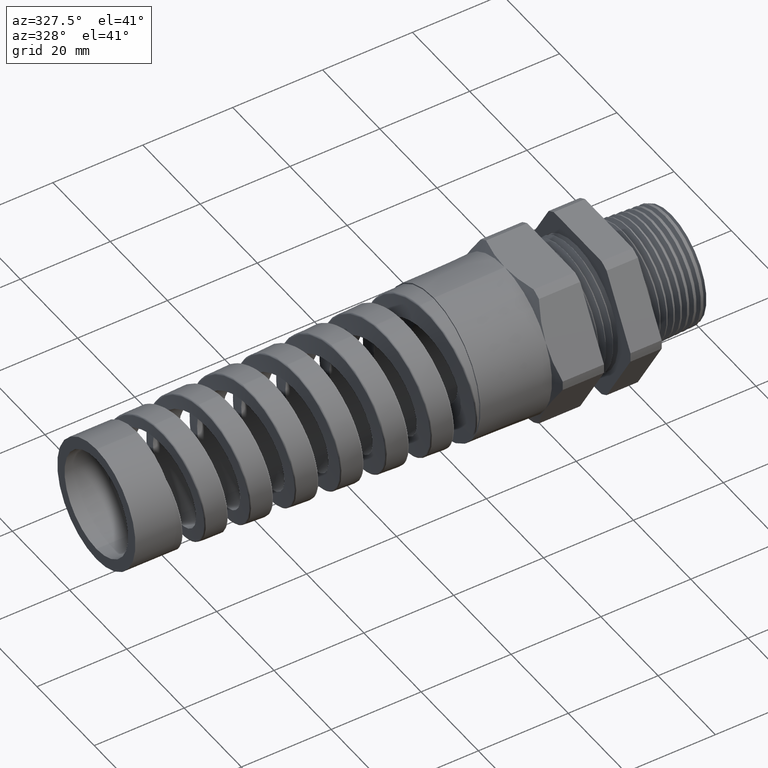
[diagram: clean part render]
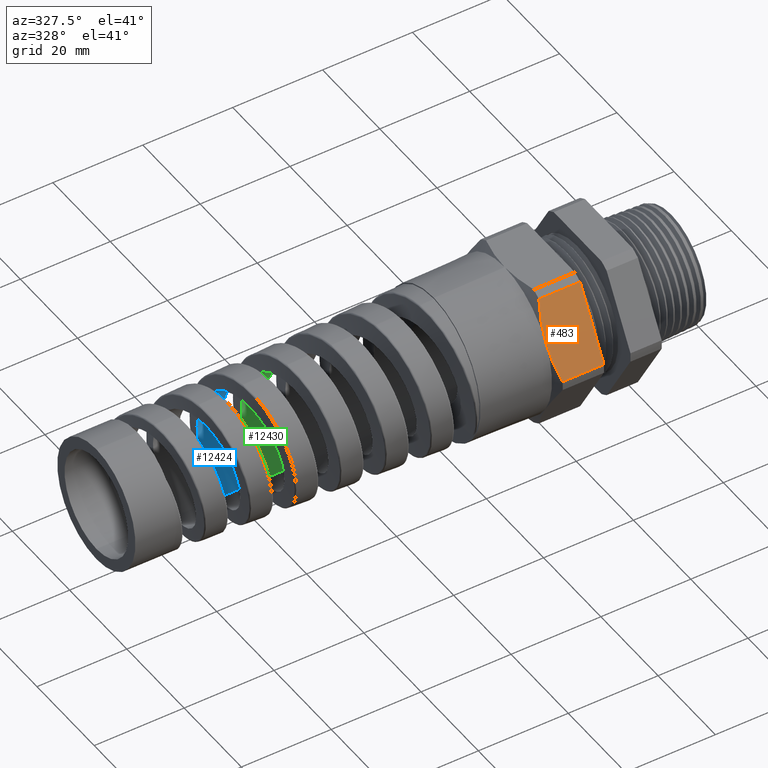
[diagram: same view with three faces highlighted in distinct colors, each labeled with its STEP entity id]
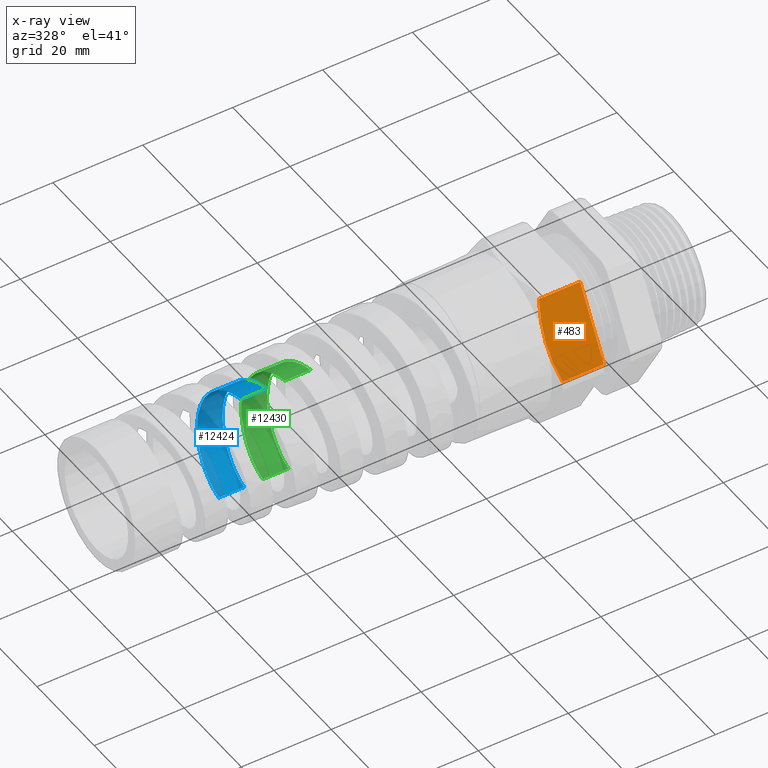
[diagram: x-ray of the same camera — body ghosted, the three highlighted faces saturated]
A machine part, auxiliary view with three faces highlighted in distinct colors.
The next image is the same camera in x-ray (body ghosted, the three faces saturated) — at least one of them is partly hidden behind the body in this view.
Their STEP definitions:

[orange] entity #483 — the highlighted planar face has unit normal (0, -0.866, 0.5).
#210 = ORIENTED_EDGE ( 'NONE', *, *, #212, .T. ) ;
#211 = ORIENTED_EDGE ( 'NONE', *, *, #217, .T. ) ;
#212 = EDGE_CURVE ( 'NONE', #13719, #4190, #12669, .T. ) ;
#213 = ORIENTED_EDGE ( 'NONE', *, *, #13856, .T. ) ;
#217 = EDGE_CURVE ( 'NONE', #8475, #700, #12742, .T. ) ;
#369 = EDGE_CURVE ( 'NONE', #4174, #8475, #12768, .T. ) ;
#370 = ORIENTED_EDGE ( 'NONE', *, *, #4171, .F. ) ;
#371 = EDGE_LOOP ( 'NONE', ( #370, #372, #211, #213, #210 ) ) ;
#372 = ORIENTED_EDGE ( 'NONE', *, *, #369, .T. ) ;
#483 = ADVANCED_FACE ( 'NONE', ( #12752 ), #12750, .T. ) ;
#700 = VERTEX_POINT ( 'NONE', #13281 ) ;
#1047 = CARTESIAN_POINT ( 'NONE',  ( -0.9125000000000002000, -0.5629165124598850500, 0.3249999999999999600 ) ) ;
#4171 = EDGE_CURVE ( 'NONE', #4174, #4190, #13559, .T. ) ;
#4174 = VERTEX_POINT ( 'NONE', #13555 ) ;
#4190 = VERTEX_POINT ( 'NONE', #13554 ) ;
#8475 = VERTEX_POINT ( 'NONE', #1047 ) ;
#10467 = CARTESIAN_POINT ( 'NONE',  ( -0.5058333333333336900, -0.7268402752278255700, 0.04107571431805911300 ) ) ;
#10485 = LINE ( 'NONE', #10545, #10544 ) ;
#10543 = DIRECTION ( 'NONE',  ( 1.000000000000000000, 0.0000000000000000000, 0.0000000000000000000 ) ) ;
#10544 = VECTOR ( 'NONE', #10543, 39.37007874015748100 ) ;
#10545 = CARTESIAN_POINT ( 'NONE',  ( -2.992185896283379200, -0.7268402752278255700, 0.04107571431805911300 ) ) ;
#12669 = LINE ( 'NONE', #12745, #12744 ) ;
#12732 = CARTESIAN_POINT ( 'NONE',  ( -0.8674666790032094000, -0.7268402752278256800, 0.04107571431805912000 ) ) ;
#12733 = CARTESIAN_POINT ( 'NONE',  ( -0.8814205714001800400, -0.7000062718228485800, 0.08755357158595522500 ) ) ;
#12734 = CARTESIAN_POINT ( 'NONE',  ( -0.8927551590989972800, -0.6729577337251735300, 0.1344030138415908400 ) ) ;
#12735 = CARTESIAN_POINT ( 'NONE',  ( -0.9044328033704855900, -0.6319488438240192800, 0.2054324947123887800 ) ) ;
#12736 = CARTESIAN_POINT ( 'NONE',  ( -0.9074375322794263600, -0.6182064968433951300, 0.2292349378980705900 ) ) ;
#12737 = CARTESIAN_POINT ( 'NONE',  ( -0.9114778356147184000, -0.5905605188772367100, 0.2771191763603863000 ) ) ;
#12738 = CARTESIAN_POINT ( 'NONE',  ( -0.9125000000000004200, -0.5766899915409090500, 0.3011436344346789000 ) ) ;
#12739 = CARTESIAN_POINT ( 'NONE',  ( -0.9125000000000002000, -0.5629165124598850500, 0.3249999999999999600 ) ) ;
#12742 = B_SPLINE_CURVE_WITH_KNOTS ( 'NONE', 3,
 ( #12739, #12738, #12737, #12736, #12735, #12734, #12733, #12732 ),
 .UNSPECIFIED., .F., .F.,
 ( 4, 2, 2, 4 ),
 ( 0.008402769293125167400, 0.01048919587064711100, 0.01257562244816905700, 0.01674847560321295400 ),
 .UNSPECIFIED. ) ;
#12743 = DIRECTION ( 'NONE',  ( 0.0000000000000000000, 0.5000000000000000000, 0.8660254037844386000 ) ) ;
#12744 = VECTOR ( 'NONE', #12743, 39.37007874015748100 ) ;
#12745 = CARTESIAN_POINT ( 'NONE',  ( -0.5058333333333334700, -0.4237915124598847800, 0.5659715686030198900 ) ) ;
#12746 = DIRECTION ( 'NONE',  ( 0.0000000000000000000, -0.5000000000000000000, -0.8660254037844386000 ) ) ;
#12747 = DIRECTION ( 'NONE',  ( 0.0000000000000000000, -0.8660254037844387100, 0.5000000000000001100 ) ) ;
#12748 = CARTESIAN_POINT ( 'NONE',  ( -2.992185896283379200, -0.3989927496919439800, 0.6089242856819407900 ) ) ;
#12749 = AXIS2_PLACEMENT_3D ( 'NONE', #12748, #12747, #12746 ) ;
#12750 = PLANE ( 'NONE',  #12749 ) ;
#12752 = FACE_OUTER_BOUND ( 'NONE', #371, .T. ) ;
#12760 = CARTESIAN_POINT ( 'NONE',  ( -0.9125000000000002000, -0.5629165124598850500, 0.3249999999999999600 ) ) ;
#12761 = CARTESIAN_POINT ( 'NONE',  ( -0.9125000000000004200, -0.5351819839639024900, 0.3730376124790081300 ) ) ;
#12762 = CARTESIAN_POINT ( 'NONE',  ( -0.9083465192945224800, -0.5076765033783838800, 0.4206785023397256500 ) ) ;
#12763 = CARTESIAN_POINT ( 'NONE',  ( -0.8928224553762588200, -0.4530635366525169200, 0.5152709354609957800 ) ) ;
#12764 = CARTESIAN_POINT ( 'NONE',  ( -0.8814868053153364100, -0.4259541240880419500, 0.5622258153860125700 ) ) ;
#12765 = CARTESIAN_POINT ( 'NONE',  ( -0.8674666790032094000, -0.3989927496919438700, 0.6089242856819410100 ) ) ;
#12768 = B_SPLINE_CURVE_WITH_KNOTS ( 'NONE', 3,
 ( #12765, #12764, #12763, #12762, #12761, #12760 ),
 .UNSPECIFIED., .F., .F.,
 ( 4, 2, 4 ),
 ( 2.361308568637535600E-007, 0.004201502711991014900, 0.008402769293125167400 ),
 .UNSPECIFIED. ) ;
#13281 = CARTESIAN_POINT ( 'NONE',  ( -0.8674666790032094000, -0.7268402752278256800, 0.04107571431805912000 ) ) ;
#13554 = CARTESIAN_POINT ( 'NONE',  ( -0.5058333333333336900, -0.3989927496919437600, 0.6089242856819410100 ) ) ;
#13555 = CARTESIAN_POINT ( 'NONE',  ( -0.8674666790032094000, -0.3989927496919438700, 0.6089242856819410100 ) ) ;
#13556 = DIRECTION ( 'NONE',  ( 1.000000000000000000, 0.0000000000000000000, 0.0000000000000000000 ) ) ;
#13557 = VECTOR ( 'NONE', #13556, 39.37007874015748100 ) ;
#13558 = CARTESIAN_POINT ( 'NONE',  ( -2.992185896283379200, -0.3989927496919437600, 0.6089242856819410100 ) ) ;
#13559 = LINE ( 'NONE', #13558, #13557 ) ;
#13719 = VERTEX_POINT ( 'NONE', #10467 ) ;
#13856 = EDGE_CURVE ( 'NONE', #700, #13719, #10485, .T. ) ;

[blue] entity #12424 — the highlighted cylindrical surface (partial cylindrical patch) has radius 11.1145 mm, axis along (1, 0, 0).
#7086 = CARTESIAN_POINT ( 'NONE',  ( -3.002204319560086300, -6.904532378361920700E-013, 0.4375801833083611800 ) ) ;
#7087 = DIRECTION ( 'NONE',  ( 1.000000000000000000, 0.0000000000000000000, 0.0000000000000000000 ) ) ;
#7088 = VECTOR ( 'NONE', #7087, 39.37007874015748100 ) ;
#7089 = CARTESIAN_POINT ( 'NONE',  ( 0.4924815508901369000, 5.358811708588965500E-017, 0.4375801833083611800 ) ) ;
#7090 = LINE ( 'NONE', #7089, #7088 ) ;
#7759 = CARTESIAN_POINT ( 'NONE',  ( -3.418639634207485000, 4.814967459083066300E-013, -0.4375801833083612400 ) ) ;
#7761 = CARTESIAN_POINT ( 'NONE',  ( -3.225303408475262300, 5.088973947103836400E-013, 0.4375801833083612400 ) ) ;
#7779 = DIRECTION ( 'NONE',  ( 1.000000000000000000, 0.0000000000000000000, 0.0000000000000000000 ) ) ;
#7780 = VECTOR ( 'NONE', #7779, 39.37007874015748100 ) ;
#7781 = CARTESIAN_POINT ( 'NONE',  ( 0.4924815508901369000, 0.0000000000000000000, -0.4375801833083611800 ) ) ;
#7782 = LINE ( 'NONE', #7781, #7780 ) ;
#7783 = CARTESIAN_POINT ( 'NONE',  ( -3.196738388823964900, 6.363754530991098700E-013, -0.4375801833083611300 ) ) ;
#7851 = DIRECTION ( 'NONE',  ( 0.0000000000000000000, 0.0000000000000000000, -1.000000000000000000 ) ) ;
#7852 = DIRECTION ( 'NONE',  ( 1.000000000000000000, 0.0000000000000000000, 0.0000000000000000000 ) ) ;
#7853 = AXIS2_PLACEMENT_3D ( 'NONE', #7860, #7852, #7851 ) ;
#7854 = CYLINDRICAL_SURFACE ( 'NONE', #7853, 0.4375801833083611800 ) ;
#7855 = FACE_OUTER_BOUND ( 'NONE', #12425, .T. ) ;
#7860 = CARTESIAN_POINT ( 'NONE',  ( 0.4924815508901369000, 0.0000000000000000000, 0.0000000000000000000 ) ) ;
#7923 = CARTESIAN_POINT ( 'NONE',  ( -3.180499868298031400, 0.1136403840825963400, -0.4235321254640019300 ) ) ;
#7924 = CARTESIAN_POINT ( 'NONE',  ( -3.176485685008354000, 0.1409258816865847900, -0.4152590730143105300 ) ) ;
#7925 = CARTESIAN_POINT ( 'NONE',  ( -3.170392182126601500, 0.1807016631388063700, -0.3987847439652938400 ) ) ;
#7927 = CARTESIAN_POINT ( 'NONE',  ( -3.168339750472847400, 0.1938224413656630400, -0.3925753926664333200 ) ) ;
#7928 = CARTESIAN_POINT ( 'NONE',  ( -3.164275526595280200, 0.2191409332768102200, -0.3790248396434179900 ) ) ;
#7929 = CARTESIAN_POINT ( 'NONE',  ( -3.162256199140687200, 0.2313921572745040500, -0.3716682997173479900 ) ) ;
#7930 = CARTESIAN_POINT ( 'NONE',  ( -3.156205470996943600, 0.2669439946978191500, -0.3478940572558939500 ) ) ;
#7931 = CARTESIAN_POINT ( 'NONE',  ( -3.152180633039813400, 0.2890590487233665200, -0.3297833949917717800 ) ) ;
#7932 = CARTESIAN_POINT ( 'NONE',  ( -3.143996442210478000, 0.3299337262215811300, -0.2888874479147533500 ) ) ;
#7933 = CARTESIAN_POINT ( 'NONE',  ( -3.139972369733070600, 0.3480272527610456800, -0.2667704224484053800 ) ) ;
#7934 = CARTESIAN_POINT ( 'NONE',  ( -3.133921424425273100, 0.3717844872760760500, -0.2312054592314479200 ) ) ;
#7935 = CARTESIAN_POINT ( 'NONE',  ( -3.131901820398780500, 0.3791356264084315700, -0.2189493635760168800 ) ) ;
#7936 = CARTESIAN_POINT ( 'NONE',  ( -3.127837375935081300, 0.3926755164243357400, -0.1936196937900120100 ) ) ;
#7937 = CARTESIAN_POINT ( 'NONE',  ( -3.125785288222444200, 0.3988777528492655800, -0.1804960821685342700 ) ) ;
#7938 = CARTESIAN_POINT ( 'NONE',  ( -3.119692290078041300, 0.4153291637668179400, -0.1407182462841936900 ) ) ;
#7939 = CARTESIAN_POINT ( 'NONE',  ( -3.115678027825588000, 0.4235888524886894400, -0.1134294975345619000 ) ) ;
#7940 = CARTESIAN_POINT ( 'NONE',  ( -3.107588338963631600, 0.4347467488471044000, -0.05735007611590983700 ) ) ;
#7941 = CARTESIAN_POINT ( 'NONE',  ( -3.103482439575586200, 0.4375945165610272100, -0.02834294615805323800 ) ) ;
#7942 = CARTESIAN_POINT ( 'NONE',  ( -3.095396540765051900, 0.4375657390140161900, 0.02878380729360221400 ) ) ;
#7943 = CARTESIAN_POINT ( 'NONE',  ( -3.091381772075890500, 0.4347808173818725800, 0.05716791608302160300 ) ) ;
#7944 = CARTESIAN_POINT ( 'NONE',  ( -3.085281717584519500, 0.4263707918501986000, 0.09945296839863627900 ) ) ;
#7945 = CARTESIAN_POINT ( 'NONE',  ( -3.083230758550333100, 0.4228398799320644000, 0.1135273913440605800 ) ) ;
#7946 = CARTESIAN_POINT ( 'NONE',  ( -3.079171686330823800, 0.4145002217124039200, 0.1409666586350053500 ) ) ;
#7947 = CARTESIAN_POINT ( 'NONE',  ( -3.077152716427530100, 0.4096801267839781900, 0.1544077652808885400 ) ) ;
#7948 = CARTESIAN_POINT ( 'NONE',  ( -3.073118281296919100, 0.3987635833112373500, 0.1807406121643840800 ) ) ;
#7949 = CARTESIAN_POINT ( 'NONE',  ( -3.071103115589604500, 0.3926670882832335500, 0.1936323787504422300 ) ) ;
#7950 = CARTESIAN_POINT ( 'NONE',  ( -3.067056562992756900, 0.3791858994856216500, 0.2188583878965291400 ) ) ;
#7951 = CARTESIAN_POINT ( 'NONE',  ( -3.065018364260343500, 0.3717740804451619700, 0.2312328379370615600 ) ) ;
#7952 = CARTESIAN_POINT ( 'NONE',  ( -3.058893557625622900, 0.3477143994743415700, 0.2672149225824661000 ) ) ;
#7954 = CARTESIAN_POINT ( 'NONE',  ( -3.054870202990101400, 0.3295702061823164200, 0.2892636917243522300 ) ) ;
#7955 = CARTESIAN_POINT ( 'NONE',  ( -3.048815822354731300, 0.2993149648022313000, 0.3195158298141694300 ) ) ;
#7956 = CARTESIAN_POINT ( 'NONE',  ( -3.046794578838365500, 0.2887197566379208800, 0.3291263569720745400 ) ) ;
#7957 = CARTESIAN_POINT ( 'NONE',  ( -3.042725174410742200, 0.2664852390505979600, 0.3473742565230120100 ) ) ;
#7958 = CARTESIAN_POINT ( 'NONE',  ( -3.040675933879656500, 0.2548339056253474700, 0.3560076725919597600 ) ) ;
#7959 = CARTESIAN_POINT ( 'NONE',  ( -3.034592066425835500, 0.2190749609116648700, 0.3798737166894612900 ) ) ;
#7960 = CARTESIAN_POINT ( 'NONE',  ( -3.030575380364503700, 0.1939293209272285300, 0.3933023295069468800 ) ) ;
#7961 = CARTESIAN_POINT ( 'NONE',  ( -3.024501960512940200, 0.1542739675920974900, 0.4097324511425088400 ) ) ;
#7962 = CARTESIAN_POINT ( 'NONE',  ( -3.022460148862699200, 0.1406692357653401800, 0.4146038983451289000 ) ) ;
#7963 = CARTESIAN_POINT ( 'NONE',  ( -3.018381087507325600, 0.1130764979552136600, 0.4229632750298393300 ) ) ;
#7964 = CARTESIAN_POINT ( 'NONE',  ( -3.016356422060914300, 0.09917652600630751100, 0.4264318569746696800 ) ) ;
#7965 = CARTESIAN_POINT ( 'NONE',  ( -3.010296812974431200, 0.05717899328138258100, 0.4347663281223258500 ) ) ;
#7966 = CARTESIAN_POINT ( 'NONE',  ( -3.006277063017099800, 0.02878644524442496400, 0.4375801833084068100 ) ) ;
#7967 = CARTESIAN_POINT ( 'NONE',  ( -3.002204319560086300, -6.904532378361920700E-013, 0.4375801833083611800 ) ) ;
#7968 = B_SPLINE_CURVE_WITH_KNOTS ( 'NONE', 3,
 ( #7967, #7966, #7965, #7964, #7963, #7962, #7961, #7960, #7959, #7958, #7957, #7956, #7955, #7954, #7952, #7951, #7950, #7949, #7948, #7947, #7946, #7945, #7944, #7943, #7942, #7941, #7940, #7939, #7938, #7937, #7936, #7935, #7934, #7933, #7932, #7931, #7930, #7929, #7928, #7927, #7925, #7924, #7923, #8007, #8006, #8005 ),
 .UNSPECIFIED., .F., .F.,
 ( 4, 2, 2, 2, 2, 2, 2, 2, 2, 2, 2, 2, 2, 2, 2, 2, 2, 2, 2, 2, 2, 2, 4 ),
 ( 0.3162916143009309500, 0.3184852039869285300, 0.3195819988299272700, 0.3206787936729260700, 0.3228723833589236500, 0.3239691782019223900, 0.3250659730449211900, 0.3272595627309187700, 0.3283563575739175700, 0.3294531524169163100, 0.3305499472599151000, 0.3316467421029138900, 0.3338403317889114300, 0.3360339214749090100, 0.3382275111609065500, 0.3393243060039053400, 0.3404211008469041300, 0.3426146905329016700, 0.3448082802188992500, 0.3459050750618979900, 0.3470018699048967900, 0.3491954595908943700, 0.3513890492768919100 ),
 .UNSPECIFIED. ) ;
#8005 = CARTESIAN_POINT ( 'NONE',  ( -3.196738388823964900, 6.363754530991098700E-013, -0.4375801833083611300 ) ) ;
#8006 = CARTESIAN_POINT ( 'NONE',  ( -3.192695575881475000, 0.02856596045342592300, -0.4375801833083196000 ) ) ;
#8007 = CARTESIAN_POINT ( 'NONE',  ( -3.188588708652487100, 0.05757238744473383600, -0.4347171705815271500 ) ) ;
#8507 = CARTESIAN_POINT ( 'NONE',  ( -3.418639634207485000, 4.814967459083066300E-013, -0.4375801833083612400 ) ) ;
#8510 = B_SPLINE_CURVE_WITH_KNOTS ( 'NONE', 3,
 ( #8507, #8599, #8598, #8597, #8596, #8595, #8594, #8593, #8592, #8591, #8590, #8589, #8588, #8587, #8586, #8585, #8584, #8583, #8582, #8581, #8580, #8579, #8578, #8577, #8576, #8575, #8574, #8573, #8572, #8571, #8570, #8568, #8567, #8566, #8565, #8564, #8563, #8562, #8561, #8560, #8559, #8558, #8557, #8556, #8555, #8554, #8553, #8552 ),
 .UNSPECIFIED., .F., .F.,
 ( 4, 2, 2, 2, 2, 2, 2, 2, 2, 2, 2, 2, 2, 2, 2, 2, 2, 2, 2, 2, 2, 2, 2, 4 ),
 ( 0.1291710445489734300, 0.1302667003864186000, 0.1313623562238637700, 0.1324580120613089200, 0.1335536678987540900, 0.1357449795736444000, 0.1368406354110895700, 0.1379362912485347400, 0.1401276029234250500, 0.1412232587608702200, 0.1423189145983153600, 0.1445102262732056700, 0.1467015379480959800, 0.1477971937855411500, 0.1488928496229863000, 0.1510841612978766100, 0.1532754729727669200, 0.1554667846476572300, 0.1565624404851023700, 0.1576580963225475400, 0.1598494079974378500, 0.1620407196723281700, 0.1631363755097733300, 0.1642320313472184800 ),
 .UNSPECIFIED. ) ;
#8552 = CARTESIAN_POINT ( 'NONE',  ( -3.225303408475262300, 5.088973947103836400E-013, 0.4375801833083612400 ) ) ;
#8553 = CARTESIAN_POINT ( 'NONE',  ( -3.227321399504615500, 0.01434508283363468200, 0.4375801833083443600 ) ) ;
#8554 = CARTESIAN_POINT ( 'NONE',  ( -3.229360484461036400, 0.02884046669841714600, 0.4368648227809317500 ) ) ;
#8555 = CARTESIAN_POINT ( 'NONE',  ( -3.233399418568273700, 0.05742196047236181700, 0.4340338285874821800 ) ) ;
#8556 = CARTESIAN_POINT ( 'NONE',  ( -3.235406307769798800, 0.07155641911634054400, 0.4319251170900484400 ) ) ;
#8557 = CARTESIAN_POINT ( 'NONE',  ( -3.241419657004108100, 0.1134970369639607500, 0.4235654420368649100 ) ) ;
#8558 = CARTESIAN_POINT ( 'NONE',  ( -3.245418802645505500, 0.1408448836083791000, 0.4153004311510945000 ) ) ;
#8559 = CARTESIAN_POINT ( 'NONE',  ( -3.253550170037949700, 0.1942434991806586700, 0.3931681477167196000 ) ) ;
#8560 = CARTESIAN_POINT ( 'NONE',  ( -3.257550502501065800, 0.2194394059383483500, 0.3796517745320220300 ) ) ;
#8561 = CARTESIAN_POINT ( 'NONE',  ( -3.263563624133512400, 0.2549924283483531700, 0.3558910715361039400 ) ) ;
#8562 = CARTESIAN_POINT ( 'NONE',  ( -3.265570553427268300, 0.2664710392755957900, 0.3473840248079151400 ) ) ;
#8563 = CARTESIAN_POINT ( 'NONE',  ( -3.269608887825871300, 0.2886653720434830300, 0.3291728701569434100 ) ) ;
#8564 = CARTESIAN_POINT ( 'NONE',  ( -3.271648412348223900, 0.2994177489233271800, 0.3194234974847400800 ) ) ;
#8565 = CARTESIAN_POINT ( 'NONE',  ( -3.277704186569353700, 0.3298459291783131200, 0.2889668648733672600 ) ) ;
#8566 = CARTESIAN_POINT ( 'NONE',  ( -3.281692517958408200, 0.3479191870176602800, 0.2669185342004331600 ) ) ;
#8567 = CARTESIAN_POINT ( 'NONE',  ( -3.289730951470461100, 0.3796827685214280200, 0.2193952139009448500 ) ) ;
#8568 = CARTESIAN_POINT ( 'NONE',  ( -3.293812378509949100, 0.3934165278872135400, 0.1936898796021002100 ) ) ;
#8570 = CARTESIAN_POINT ( 'NONE',  ( -3.301846950721641200, 0.4152579036001686200, 0.1409014101160798700 ) ) ;
#8571 = CARTESIAN_POINT ( 'NONE',  ( -3.305836155382774900, 0.4235477669772276800, 0.1136182551747282100 ) ) ;
#8572 = CARTESIAN_POINT ( 'NONE',  ( -3.311896947411828100, 0.4319623955629648400, 0.07135303877709278700 ) ) ;
#8573 = CARTESIAN_POINT ( 'NONE',  ( -3.313935746389976300, 0.4340889995214851100, 0.05699849193751865100 ) ) ;
#8574 = CARTESIAN_POINT ( 'NONE',  ( -3.317970642318984500, 0.4368895845276871700, 0.02845309332814586700 ) ) ;
#8575 = CARTESIAN_POINT ( 'NONE',  ( -3.319976936225608200, 0.4375821778156296400, 0.01419035197657136100 ) ) ;
#8576 = CARTESIAN_POINT ( 'NONE',  ( -3.325989401717179400, 0.4375761813828924500, -0.02856481643879951700 ) ) ;
#8577 = CARTESIAN_POINT ( 'NONE',  ( -3.330002168324347300, 0.4347962969170745500, -0.05711133622090539700 ) ) ;
#8578 = CARTESIAN_POINT ( 'NONE',  ( -3.338121545232189300, 0.4235274175250969300, -0.1137279699205979300 ) ) ;
#8579 = CARTESIAN_POINT ( 'NONE',  ( -3.342119784238922100, 0.4152064471620964800, -0.1410435054982334100 ) ) ;
#8580 = CARTESIAN_POINT ( 'NONE',  ( -3.348134781001579400, 0.3988428243729751400, -0.1805661377899318000 ) ) ;
#8581 = CARTESIAN_POINT ( 'NONE',  ( -3.350142931621762400, 0.3927366258372881300, -0.1934968112213549500 ) ) ;
#8582 = CARTESIAN_POINT ( 'NONE',  ( -3.354185851165004500, 0.3791898420514803200, -0.2188564299075174100 ) ) ;
#8583 = CARTESIAN_POINT ( 'NONE',  ( -3.356223185384855400, 0.3717313526282012300, -0.2312955528918944300 ) ) ;
#8584 = CARTESIAN_POINT ( 'NONE',  ( -3.362271201116467700, 0.3478333922660335500, -0.2670393341992972600 ) ) ;
#8585 = CARTESIAN_POINT ( 'NONE',  ( -3.366261755582622000, 0.3297472296108687200, -0.2890701070770526100 ) ) ;
#8586 = CARTESIAN_POINT ( 'NONE',  ( -3.372295332210635300, 0.2994160449360783200, -0.3194229722693188700 ) ) ;
#8587 = CARTESIAN_POINT ( 'NONE',  ( -3.374322984699458700, 0.2887231298080447100, -0.3291250169726857000 ) ) ;
#8588 = CARTESIAN_POINT ( 'NONE',  ( -3.378378378382454800, 0.2664300008937385300, -0.3474181588621786900 ) ) ;
#8589 = CARTESIAN_POINT ( 'NONE',  ( -3.380391179874331800, 0.2549165764128867300, -0.3559461341067596300 ) ) ;
#8590 = CARTESIAN_POINT ( 'NONE',  ( -3.386414184700929500, 0.2193121830332080400, -0.3797280094529888500 ) ) ;
#8591 = CARTESIAN_POINT ( 'NONE',  ( -3.390406935567877400, 0.1941666649154955600, -0.3931966769756351000 ) ) ;
#8592 = CARTESIAN_POINT ( 'NONE',  ( -3.396475589536740900, 0.1542974643368041600, -0.4097263541128871000 ) ) ;
#8593 = CARTESIAN_POINT ( 'NONE',  ( -3.398510899902207800, 0.1406518635380496800, -0.4146066118478526900 ) ) ;
#8594 = CARTESIAN_POINT ( 'NONE',  ( -3.402539869893839600, 0.1132361726392300500, -0.4229174369906030800 ) ) ;
#8595 = CARTESIAN_POINT ( 'NONE',  ( -3.404544796475564600, 0.09939266309023633800, -0.4263807885418564600 ) ) ;
#8596 = CARTESIAN_POINT ( 'NONE',  ( -3.408554013257226100, 0.07144098931292190700, -0.4319440511915120200 ) ) ;
#8597 = CARTESIAN_POINT ( 'NONE',  ( -3.410558100178132900, 0.05733279546543689600, -0.4340439604599880000 ) ) ;
#8598 = CARTESIAN_POINT ( 'NONE',  ( -3.414582982577593700, 0.02885078803810346700, -0.4368624967621432800 ) ) ;
#8599 = CARTESIAN_POINT ( 'NONE',  ( -3.416613911323603100, 0.01440654865216141700, -0.4375801833083454200 ) ) ;
#12302 = EDGE_CURVE ( 'NONE', #12407, #12303, #7090, .T. ) ;
#12303 = VERTEX_POINT ( 'NONE', #7086 ) ;
#12375 = ORIENTED_EDGE ( 'NONE', *, *, #12302, .F. ) ;
#12376 = ORIENTED_EDGE ( 'NONE', *, *, #12488, .F. ) ;
#12407 = VERTEX_POINT ( 'NONE', #7761 ) ;
#12408 = VERTEX_POINT ( 'NONE', #7759 ) ;
#12409 = VERTEX_POINT ( 'NONE', #7783 ) ;
#12411 = EDGE_CURVE ( 'NONE', #12408, #12409, #7782, .T. ) ;
#12424 = ADVANCED_FACE ( 'NONE', ( #7855 ), #7854, .F. ) ;
#12425 = EDGE_LOOP ( 'NONE', ( #12375, #12376, #12485, #12486 ) ) ;
#12429 = EDGE_CURVE ( 'NONE', #12303, #12409, #7968, .T. ) ;
#12485 = ORIENTED_EDGE ( 'NONE', *, *, #12411, .T. ) ;
#12486 = ORIENTED_EDGE ( 'NONE', *, *, #12429, .F. ) ;
#12488 = EDGE_CURVE ( 'NONE', #12408, #12407, #8510, .T. ) ;

[green] entity #12430 — the highlighted cylindrical surface (partial cylindrical patch) has radius 11.1145 mm, axis along (1, 0, 0).
#6987 = CARTESIAN_POINT ( 'NONE',  ( -2.613139241122710600, -7.024370866521489800E-014, 0.4375801833083614000 ) ) ;
#6988 = DIRECTION ( 'NONE',  ( 1.000000000000000000, 0.0000000000000000000, 0.0000000000000000000 ) ) ;
#6989 = VECTOR ( 'NONE', #6988, 39.37007874015748100 ) ;
#6990 = CARTESIAN_POINT ( 'NONE',  ( 0.4924815508901369000, 5.358811708588965500E-017, 0.4375801833083611800 ) ) ;
#6991 = LINE ( 'NONE', #6990, #6989 ) ;
#7085 = CARTESIAN_POINT ( 'NONE',  ( -2.807672832263373100, -5.549066237130535000E-017, -0.4375801833083611800 ) ) ;
#7091 = CARTESIAN_POINT ( 'NONE',  ( -3.031966667347497000, 1.880493177513736200E-014, -0.4375801833083611300 ) ) ;
#7100 = CARTESIAN_POINT ( 'NONE',  ( -2.838629872620519500, 1.421628084827941900E-014, 0.4375801833083612400 ) ) ;
#7107 = DIRECTION ( 'NONE',  ( 1.000000000000000000, 0.0000000000000000000, 0.0000000000000000000 ) ) ;
#7108 = VECTOR ( 'NONE', #7107, 39.37007874015748100 ) ;
#7109 = CARTESIAN_POINT ( 'NONE',  ( 0.4924815508901369000, 0.0000000000000000000, -0.4375801833083611800 ) ) ;
#7110 = LINE ( 'NONE', #7109, #7108 ) ;
#7765 = CARTESIAN_POINT ( 'NONE',  ( -2.629383356034305000, 0.1136716093560230100, 0.4235266664750937400 ) ) ;
#7766 = CARTESIAN_POINT ( 'NONE',  ( -2.623305242008180400, 0.07155678931911303700, 0.4319270268433635400 ) ) ;
#7767 = CARTESIAN_POINT ( 'NONE',  ( -2.621259364263913900, 0.05724498533232066900, 0.4340586976099886600 ) ) ;
#7768 = CARTESIAN_POINT ( 'NONE',  ( -2.617181603483567100, 0.02857241836256976500, 0.4368839184789153300 ) ) ;
#7769 = CARTESIAN_POINT ( 'NONE',  ( -2.615158021695543700, 0.01426935030649731200, 0.4375801833083636200 ) ) ;
#7770 = CARTESIAN_POINT ( 'NONE',  ( -2.613139241122710600, -7.024370866521489800E-014, 0.4375801833083614000 ) ) ;
#7771 = B_SPLINE_CURVE_WITH_KNOTS ( 'NONE', 3,
 ( #7770, #7769, #7768, #7767, #7766, #7765, #7844, #7843, #7842, #7841, #7840, #7839, #7838, #7837, #7836, #7835, #7834, #7833, #7832, #7831, #7830, #7829, #7828, #7827, #7826, #7825, #7824, #7823, #7822, #7821, #7820, #7819, #7818, #7817, #7816, #7815, #7814, #7813, #7812, #7811, #7810, #7809, #7808, #7807, #7806, #7805, #7804 ),
 .UNSPECIFIED., .F., .F.,
 ( 4, 2, 2, 2, 2, 2, 2, 2, 1, 2, 2, 2, 2, 2, 2, 2, 2, 2, 2, 2, 2, 2, 2, 4 ),
 ( 0.2461000974137508000, 0.2471969352347334100, 0.2482937730557160100, 0.2504874486976812500, 0.2515842865186638800, 0.2526811243396464600, 0.2548747999816116700, 0.2559716378025943000, 0.2570684756235768800, 0.2581653134445595100, 0.2592621512655420800, 0.2614558269075072900, 0.2625526647284899300, 0.2636495025494725000, 0.2658431781914377100, 0.2669400160124202900, 0.2680368538334029200, 0.2702305294753680800, 0.2724242051173332800, 0.2735210429383159200, 0.2746178807592984900, 0.2768115564012637000, 0.2790052320432289100, 0.2811989076851941200 ),
 .UNSPECIFIED. ) ;
#7804 = CARTESIAN_POINT ( 'NONE',  ( -2.807672832263373100, -5.549066237130535000E-017, -0.4375801833083611800 ) ) ;
#7805 = CARTESIAN_POINT ( 'NONE',  ( -2.803607762248678800, 0.02872124390136618700, -0.4375801833083612400 ) ) ;
#7806 = CARTESIAN_POINT ( 'NONE',  ( -2.799590814173677600, 0.05709967144915575200, -0.4347788572350065300 ) ) ;
#7807 = CARTESIAN_POINT ( 'NONE',  ( -2.791505033385405900, 0.1131604506087368900, -0.4236599339047856200 ) ) ;
#7808 = CARTESIAN_POINT ( 'NONE',  ( -2.787400085736984100, 0.1410579036183778600, -0.4152056754304244100 ) ) ;
#7809 = CARTESIAN_POINT ( 'NONE',  ( -2.779310177048936100, 0.1938617894714842500, -0.3933328001397296500 ) ) ;
#7810 = CARTESIAN_POINT ( 'NONE',  ( -2.775294173260499000, 0.2190207856655436200, -0.3799093411971434800 ) ) ;
#7811 = CARTESIAN_POINT ( 'NONE',  ( -2.769199544618873500, 0.2548525690615759400, -0.3559954826700034700 ) ) ;
#7812 = CARTESIAN_POINT ( 'NONE',  ( -2.767148183466803200, 0.2665143015144039700, -0.3473506724378024900 ) ) ;
#7813 = CARTESIAN_POINT ( 'NONE',  ( -2.763086590672518400, 0.2887004445276966600, -0.3291419388109249100 ) ) ;
#7814 = CARTESIAN_POINT ( 'NONE',  ( -2.761066968281424800, 0.2992831606396647000, -0.3195453244018668400 ) ) ;
#7815 = CARTESIAN_POINT ( 'NONE',  ( -2.755013650339738000, 0.3295277901402687300, -0.2893107039343355600 ) ) ;
#7816 = CARTESIAN_POINT ( 'NONE',  ( -2.750981237259828600, 0.3477293092156320500, -0.2671990032910798700 ) ) ;
#7817 = CARTESIAN_POINT ( 'NONE',  ( -2.742806860143966100, 0.3798388181248179600, -0.2191653533131289500 ) ) ;
#7818 = CARTESIAN_POINT ( 'NONE',  ( -2.738783150130661400, 0.3932809352919010000, -0.1939582408116044300 ) ) ;
#7819 = CARTESIAN_POINT ( 'NONE',  ( -2.732728302834669200, 0.4096666948386403200, -0.1544439544586308200 ) ) ;
#7820 = CARTESIAN_POINT ( 'NONE',  ( -2.730707528244780600, 0.4144945512280975300, -0.1409864463987020900 ) ) ;
#7821 = CARTESIAN_POINT ( 'NONE',  ( -2.726641355214426200, 0.4228513751711255900, -0.1134884380974730700 ) ) ;
#7822 = CARTESIAN_POINT ( 'NONE',  ( -2.724590798247077400, 0.4263794723513199000, -0.09941146988692213500 ) ) ;
#7823 = CARTESIAN_POINT ( 'NONE',  ( -2.718503366763585400, 0.4347709354047549800, -0.05721330619193043500 ) ) ;
#7824 = CARTESIAN_POINT ( 'NONE',  ( -2.714486937747544900, 0.4375644626025221300, -0.02884054132669838800 ) ) ;
#7825 = CARTESIAN_POINT ( 'NONE',  ( -2.708414971551126500, 0.4375879453348386300, 0.01406099765063382500 ) ) ;
#7826 = CARTESIAN_POINT ( 'NONE',  ( -2.706377234980445600, 0.4368918084916913500, 0.02846435203402579800 ) ) ;
#7827 = CARTESIAN_POINT ( 'NONE',  ( -2.702293926259734700, 0.4340670682649377400, 0.05718786507415397200 ) ) ;
#7828 = CARTESIAN_POINT ( 'NONE',  ( -2.700268127192782000, 0.4319569697254891400, 0.07136846619437074700 ) ) ;
#7829 = CARTESIAN_POINT ( 'NONE',  ( -2.694207136923376700, 0.4235999524515432500, 0.1133797003699117500 ) ) ;
#7830 = CARTESIAN_POINT ( 'NONE',  ( -2.690187873850772100, 0.4153449995690637900, 0.1406846082284559900 ) ) ;
#7831 = CARTESIAN_POINT ( 'NONE',  ( -2.684082892779002400, 0.3988543217807339300, 0.1805504071715709500 ) ) ;
#7832 = CARTESIAN_POINT ( 'NONE',  ( -2.682033483891563800, 0.3926536803663545600, 0.1936618900229322700 ) ) ;
#7833 = CARTESIAN_POINT ( 'NONE',  ( -2.677978044180867400, 0.3791391765474427200, 0.2189413737954176400 ) ) ;
#7834 = CARTESIAN_POINT ( 'NONE',  ( -2.673943310258486000, 0.3644553268247074900, 0.2434280160901444400 ) ) ;
#7835 = CARTESIAN_POINT ( 'NONE',  ( -2.669910389161951800, 0.3474744645753309900, 0.2663505491012386200 ) ) ;
#7836 = CARTESIAN_POINT ( 'NONE',  ( -2.665860037810032800, 0.3293333747774465600, 0.2884798897603475500 ) ) ;
#7837 = CARTESIAN_POINT ( 'NONE',  ( -2.663817642048237600, 0.3196387218226058300, 0.2991912217825502000 ) ) ;
#7838 = CARTESIAN_POINT ( 'NONE',  ( -2.657697437803619800, 0.2890560466967914100, 0.3297795477527109600 ) ) ;
#7839 = CARTESIAN_POINT ( 'NONE',  ( -2.653678691738000400, 0.2669732231774424900, 0.3478730654776497300 ) ) ;
#7840 = CARTESIAN_POINT ( 'NONE',  ( -2.647622242086507000, 0.2314005243280053400, 0.3716634268441015300 ) ) ;
#7841 = CARTESIAN_POINT ( 'NONE',  ( -2.645598931043410000, 0.2191319623625486400, 0.3790312980187997000 ) ) ;
#7842 = CARTESIAN_POINT ( 'NONE',  ( -2.641524754582273500, 0.1937529582512576300, 0.3926109180544576400 ) ) ;
#7843 = CARTESIAN_POINT ( 'NONE',  ( -2.639476641480148700, 0.1806531993436104600, 0.3988057426852705800 ) ) ;
#7844 = CARTESIAN_POINT ( 'NONE',  ( -2.633396789773855100, 0.1409503058000650100, 0.4152471025180806100 ) ) ;
#7969 = FACE_OUTER_BOUND ( 'NONE', #12487, .T. ) ;
#7970 = CARTESIAN_POINT ( 'NONE',  ( -2.921215150750765300, 0.4264005254186208900, 0.09930896327986316100 ) ) ;
#7971 = CARTESIAN_POINT ( 'NONE',  ( -2.927230004578381900, 0.4347406155909507300, 0.05735904238264182000 ) ) ;
#7972 = CARTESIAN_POINT ( 'NONE',  ( -2.931237944858300400, 0.4375815924882114900, 0.02887819405500181800 ) ) ;
#7973 = CARTESIAN_POINT ( 'NONE',  ( -2.939366664906929700, 0.4375787730873219000, -0.02892088380032043600 ) ) ;
#7974 = CARTESIAN_POINT ( 'NONE',  ( -2.943363990872125900, 0.4347417657543158900, -0.05735294194860565700 ) ) ;
#7975 = CARTESIAN_POINT ( 'NONE',  ( -2.949380437958638800, 0.4264002261725202700, -0.09931062606032165000 ) ) ;
#7976 = CARTESIAN_POINT ( 'NONE',  ( -2.951389108545921400, 0.4229337946839157900, -0.1131806586185494700 ) ) ;
#7977 = CARTESIAN_POINT ( 'NONE',  ( -2.955431540759325200, 0.4145982129636678900, -0.1406811216133791500 ) ) ;
#7978 = CARTESIAN_POINT ( 'NONE',  ( -2.957470883976586900, 0.4097062155992811600, -0.1543470891328792300 ) ) ;
#7979 = CARTESIAN_POINT ( 'NONE',  ( -2.963522778349695100, 0.3932228382332432800, -0.1941014608836494900 ) ) ;
#7981 = CARTESIAN_POINT ( 'NONE',  ( -2.967512084743368500, 0.3797721067410886900, -0.2192430539787232900 ) ) ;
#7982 = CARTESIAN_POINT ( 'NONE',  ( -2.973546048186184600, 0.3559460941329794000, -0.2549181890994266500 ) ) ;
#7983 = CARTESIAN_POINT ( 'NONE',  ( -2.975571221467449700, 0.3473659458395849700, -0.2664989872068684900 ) ) ;
#7984 = CARTESIAN_POINT ( 'NONE',  ( -2.979632652103454400, 0.3290460746303320900, -0.2888139388632172100 ) ) ;
#7985 = CARTESIAN_POINT ( 'NONE',  ( -2.981647002029892000, 0.3194071998807867500, -0.2994317916665637500 ) ) ;
#7986 = CARTESIAN_POINT ( 'NONE',  ( -2.987671230323332100, 0.2891023138068559200, -0.3297150746695073900 ) ) ;
#7987 = CARTESIAN_POINT ( 'NONE',  ( -2.991662762929498500, 0.2670608077286750800, -0.3478246057484525900 ) ) ;
#7988 = CARTESIAN_POINT ( 'NONE',  ( -2.997730521076809000, 0.2311968391239805600, -0.3717945562328800500 ) ) ;
#7989 = CARTESIAN_POINT ( 'NONE',  ( -2.999769113306254300, 0.2187510069458589700, -0.3792491747497717100 ) ) ;
#7990 = CARTESIAN_POINT ( 'NONE',  ( -3.003802127521898200, 0.1934585260498451500, -0.3927540429923434000 ) ) ;
#7991 = CARTESIAN_POINT ( 'NONE',  ( -3.005807450239785800, 0.1805473451081518200, -0.3988511742663632400 ) ) ;
#7992 = CARTESIAN_POINT ( 'NONE',  ( -3.009816030337122400, 0.1542066629581216000, -0.4097559128781170800 ) ) ;
#7993 = CARTESIAN_POINT ( 'NONE',  ( -3.011819235601286900, 0.1407771479000705900, -0.4145635054964835200 ) ) ;
#7994 = CARTESIAN_POINT ( 'NONE',  ( -3.015843176053040900, 0.1133966362567223700, -0.4228738681286322600 ) ) ;
#7995 = CARTESIAN_POINT ( 'NONE',  ( -3.017872050994975900, 0.09938861333829029900, -0.4263875346560008200 ) ) ;
#7996 = CARTESIAN_POINT ( 'NONE',  ( -3.023958560072803600, 0.05694993846337134700, -0.4348162355775174200 ) ) ;
#7997 = CARTESIAN_POINT ( 'NONE',  ( -3.027954972463774200, 0.02853094462942250300, -0.4375801833083597400 ) ) ;
#7998 = CARTESIAN_POINT ( 'NONE',  ( -3.031966667347497000, 1.880493177513736200E-014, -0.4375801833083611300 ) ) ;
#7999 = B_SPLINE_CURVE_WITH_KNOTS ( 'NONE', 3,
 ( #7998, #7997, #7996, #7995, #7994, #7993, #7992, #7991, #7990, #7989, #7988, #7987, #7986, #7985, #7984, #7983, #7982, #7981, #7979, #7978, #7977, #7976, #7975, #7974, #7973, #7972, #7971, #7970, #8048, #8047, #8046, #8045, #8044, #8043, #8042, #8041, #8040, #8039, #8038, #8037, #8036, #8035, #8034, #8033, #8032, #8031 ),
 .UNSPECIFIED., .F., .F.,
 ( 4, 2, 2, 2, 2, 2, 2, 2, 2, 2, 2, 2, 2, 2, 2, 2, 2, 2, 2, 2, 2, 2, 4 ),
 ( 0.1992993950403254000, 0.2014912655880457000, 0.2025872008619058200, 0.2036831361357659700, 0.2047790714096261200, 0.2058750066834862400, 0.2080668772312065400, 0.2091628125050666900, 0.2102587477789268100, 0.2124506183266471100, 0.2135465536005072600, 0.2146424888743674000, 0.2168343594220876700, 0.2190262299698079700, 0.2201221652436681200, 0.2212181005175282700, 0.2234099710652485400, 0.2256018416129688400, 0.2277937121606891100, 0.2288896474345492600, 0.2299855827084093800, 0.2321774532561296500, 0.2343693238038499200 ),
 .UNSPECIFIED. ) ;
#8000 = DIRECTION ( 'NONE',  ( 0.0000000000000000000, 0.0000000000000000000, -1.000000000000000000 ) ) ;
#8001 = DIRECTION ( 'NONE',  ( 1.000000000000000000, 0.0000000000000000000, 0.0000000000000000000 ) ) ;
#8002 = CARTESIAN_POINT ( 'NONE',  ( 0.4924815508901369000, 0.0000000000000000000, 0.0000000000000000000 ) ) ;
#8003 = AXIS2_PLACEMENT_3D ( 'NONE', #8002, #8001, #8000 ) ;
#8004 = CYLINDRICAL_SURFACE ( 'NONE', #8003, 0.4375801833083611800 ) ;
#8031 = CARTESIAN_POINT ( 'NONE',  ( -2.838629872620519500, 1.421628084827941900E-014, 0.4375801833083612400 ) ) ;
#8032 = CARTESIAN_POINT ( 'NONE',  ( -2.842642250510628800, 0.02852298603908329600, 0.4375801833083599600 ) ) ;
#8033 = CARTESIAN_POINT ( 'NONE',  ( -2.846640289079455800, 0.05695423212831723900, 0.4348179163516574500 ) ) ;
#8034 = CARTESIAN_POINT ( 'NONE',  ( -2.854761522529524000, 0.1136044562112101800, 0.4235616040987173500 ) ) ;
#8035 = CARTESIAN_POINT ( 'NONE',  ( -2.858774380069955000, 0.1410319844473001100, 0.4152099375701268600 ) ) ;
#8036 = CARTESIAN_POINT ( 'NONE',  ( -2.864790622778132300, 0.1805467573304320700, 0.3988514877233544900 ) ) ;
#8037 = CARTESIAN_POINT ( 'NONE',  ( -2.866797589223715200, 0.1934637857953792600, 0.3927518811073073000 ) ) ;
#8038 = CARTESIAN_POINT ( 'NONE',  ( -2.870832863856895800, 0.2187764531646817500, 0.3792349404634157200 ) ) ;
#8039 = CARTESIAN_POINT ( 'NONE',  ( -2.872871432872012000, 0.2312289193635541900, 0.3717740841177868400 ) ) ;
#8040 = CARTESIAN_POINT ( 'NONE',  ( -2.878931314804521200, 0.2670579029315952000, 0.3478246068004192700 ) ) ;
#8041 = CARTESIAN_POINT ( 'NONE',  ( -2.882923764402983000, 0.2890962293386452600, 0.3297215685150894900 ) ) ;
#8042 = CARTESIAN_POINT ( 'NONE',  ( -2.890963121431793200, 0.3295212534178386100, 0.2893245342306974300 ) ) ;
#8043 = CARTESIAN_POINT ( 'NONE',  ( -2.895042283860545400, 0.3480174992886750900, 0.2667907034838876700 ) ) ;
#8044 = CARTESIAN_POINT ( 'NONE',  ( -2.903081218940120100, 0.3797670162980691400, 0.2192497950024876200 ) ) ;
#8045 = CARTESIAN_POINT ( 'NONE',  ( -2.907073897790850600, 0.3932221499266288500, 0.1941064754677394900 ) ) ;
#8046 = CARTESIAN_POINT ( 'NONE',  ( -2.913132513054501200, 0.4097178114621404200, 0.1543174434134565200 ) ) ;
#8047 = CARTESIAN_POINT ( 'NONE',  ( -2.915171504851610300, 0.4146090103925414400, 0.1406479877364224800 ) ) ;
#8048 = CARTESIAN_POINT ( 'NONE',  ( -2.919208438948185600, 0.4229357720939470000, 0.1131716423680601400 ) ) ;
#12292 = EDGE_CURVE ( 'NONE', #12311, #12293, #6991, .T. ) ;
#12293 = VERTEX_POINT ( 'NONE', #6987 ) ;
#12300 = VERTEX_POINT ( 'NONE', #7091 ) ;
#12306 = VERTEX_POINT ( 'NONE', #7085 ) ;
#12308 = EDGE_CURVE ( 'NONE', #12300, #12306, #7110, .T. ) ;
#12311 = VERTEX_POINT ( 'NONE', #7100 ) ;
#12415 = ORIENTED_EDGE ( 'NONE', *, *, #12416, .F. ) ;
#12416 = EDGE_CURVE ( 'NONE', #12293, #12306, #7771, .T. ) ;
#12430 = ADVANCED_FACE ( 'NONE', ( #7969 ), #8004, .F. ) ;
#12431 = ORIENTED_EDGE ( 'NONE', *, *, #12292, .F. ) ;
#12432 = ORIENTED_EDGE ( 'NONE', *, *, #12433, .F. ) ;
#12433 = EDGE_CURVE ( 'NONE', #12300, #12311, #7999, .T. ) ;
#12434 = ORIENTED_EDGE ( 'NONE', *, *, #12308, .T. ) ;
#12487 = EDGE_LOOP ( 'NONE', ( #12431, #12432, #12434, #12415 ) ) ;